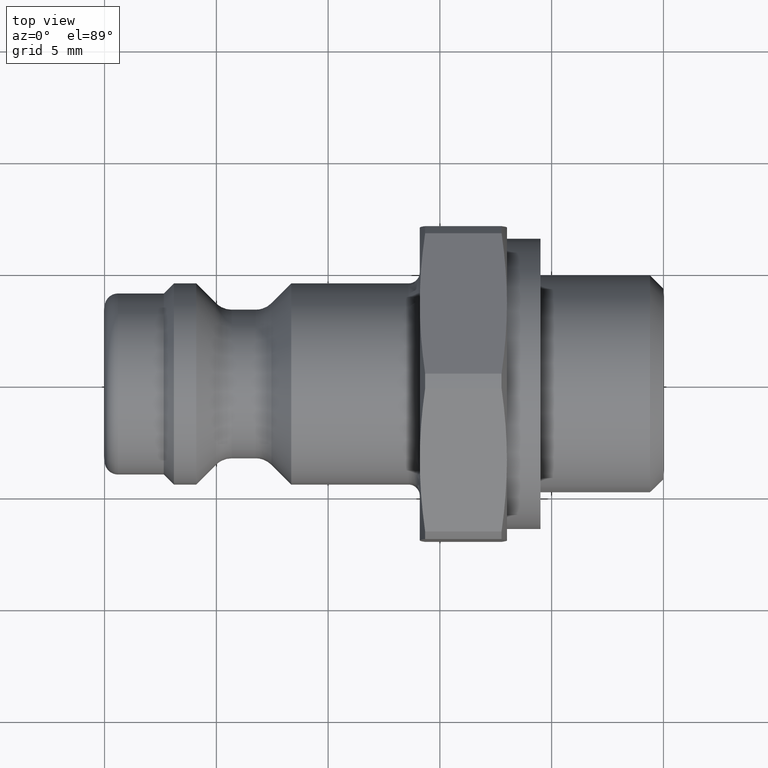
[diagram: clean part render]
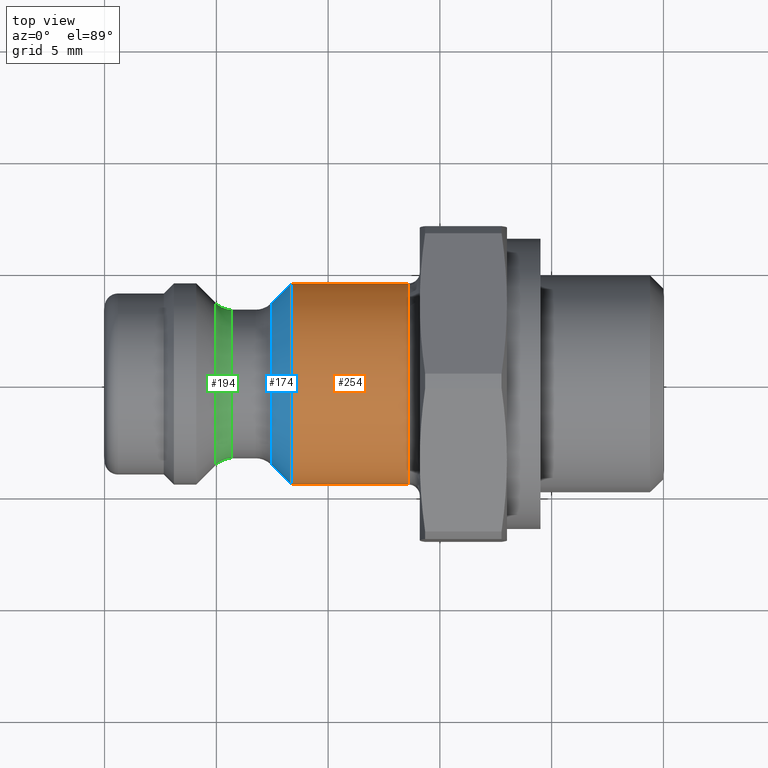
[diagram: same view with three faces highlighted in distinct colors, each labeled with its STEP entity id]
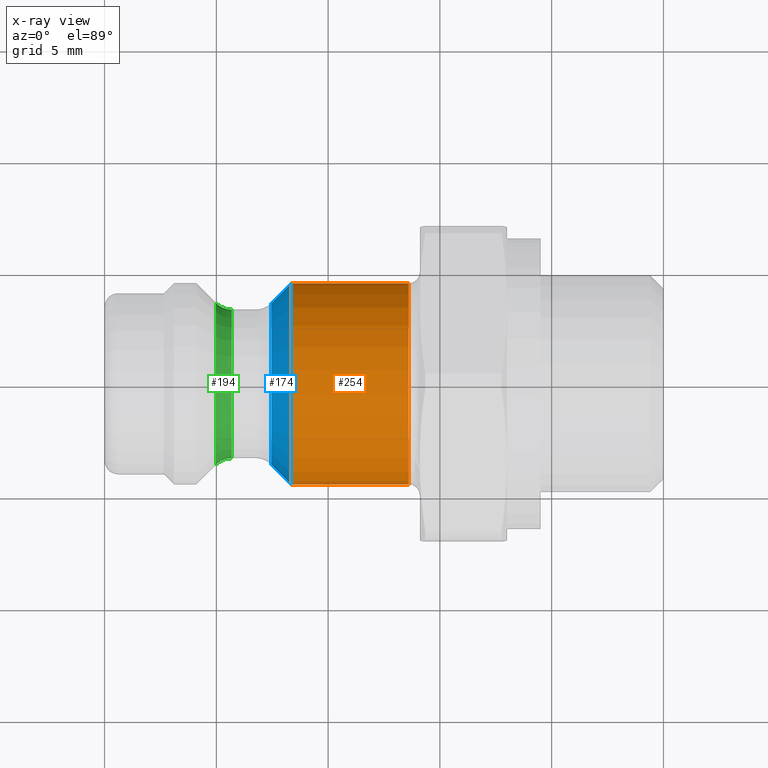
[diagram: x-ray of the same camera — body ghosted, the three highlighted faces saturated]
A machine part, top view with three faces highlighted in distinct colors.
The next image is the same camera in x-ray (body ghosted, the three faces saturated) — at least one of them is partly hidden behind the body in this view.
Their STEP definitions:

[orange] entity #254 — the highlighted cylindrical surface (bore or boss wall) has radius 4.5 mm, axis along (1, 0, 0).
#160=CARTESIAN_POINT('',(8.350000000000000,4.500000000000000,0.0));
#161=VERTEX_POINT('',#160);
#162=CARTESIAN_POINT('',(8.350000000000000,0.0,0.0));
#163=DIRECTION('',(1.0,0.0,0.0));
#164=DIRECTION('',(0.0,1.0,0.0));
#165=AXIS2_PLACEMENT_3D('',#162,#163,#164);
#166=CIRCLE('',#165,4.500000000000000);
#167=EDGE_CURVE('',#161,#161,#166,.T.);
#220=CARTESIAN_POINT('',(13.600000000000001,4.500000000000000,0.0));
#221=VERTEX_POINT('',#220);
#222=CARTESIAN_POINT('',(13.600000000000001,0.0,0.0));
#223=DIRECTION('',(1.0,0.0,0.0));
#224=DIRECTION('',(0.0,-1.0,0.0));
#225=AXIS2_PLACEMENT_3D('',#222,#223,#224);
#226=CIRCLE('',#225,4.500000000000000);
#227=EDGE_CURVE('',#221,#221,#226,.T.);
#243=CARTESIAN_POINT('',(11.225000000000001,0.0,0.0));
#244=DIRECTION('',(1.0,0.0,0.0));
#245=DIRECTION('',(0.0,1.0,0.0));
#246=AXIS2_PLACEMENT_3D('',#243,#244,#245);
#247=CYLINDRICAL_SURFACE('',#246,4.500000000000000);
#248=ORIENTED_EDGE('',*,*,#167,.T.);
#249=EDGE_LOOP('',(#248));
#250=FACE_OUTER_BOUND('',#249,.T.);
#251=ORIENTED_EDGE('',*,*,#227,.F.);
#252=EDGE_LOOP('',(#251));
#253=FACE_BOUND('',#252,.T.);
#254=ADVANCED_FACE('',(#250,#253),#247,.T.);

[blue] entity #174 — the highlighted conical surface has half-angle 45 deg.
#123=CARTESIAN_POINT('',(7.467893218813453,3.617893218813452,-8.861283E-016));
#124=VERTEX_POINT('',#123);
#125=CARTESIAN_POINT('',(7.467893218813453,0.0,-4.430641E-016));
#126=DIRECTION('',(-1.0,0.0,0.0));
#127=DIRECTION('',(0.0,-1.0,0.0));
#128=AXIS2_PLACEMENT_3D('',#125,#126,#127);
#129=CIRCLE('',#128,3.617893218813452);
#130=EDGE_CURVE('',#124,#124,#129,.T.);
#155=CARTESIAN_POINT('',(7.762500000000000,0.0,0.0));
#156=DIRECTION('',(1.0,0.0,0.0));
#157=DIRECTION('',(0.0,1.0,0.0));
#158=AXIS2_PLACEMENT_3D('',#155,#156,#157);
#159=CONICAL_SURFACE('',#158,3.912500000000000,45.000000000000014);
#160=CARTESIAN_POINT('',(8.350000000000000,4.500000000000000,0.0));
#161=VERTEX_POINT('',#160);
#162=CARTESIAN_POINT('',(8.350000000000000,0.0,0.0));
#163=DIRECTION('',(1.0,0.0,0.0));
#164=DIRECTION('',(0.0,1.0,0.0));
#165=AXIS2_PLACEMENT_3D('',#162,#163,#164);
#166=CIRCLE('',#165,4.500000000000000);
#167=EDGE_CURVE('',#161,#161,#166,.T.);
#168=ORIENTED_EDGE('',*,*,#167,.F.);
#169=EDGE_LOOP('',(#168));
#170=FACE_OUTER_BOUND('',#169,.T.);
#171=ORIENTED_EDGE('',*,*,#130,.F.);
#172=EDGE_LOOP('',(#171));
#173=FACE_BOUND('',#172,.T.);
#174=ADVANCED_FACE('',(#170,#173),#159,.T.);

[green] entity #194 — the highlighted toroidal blend (fillet) surface has major radius 4.325 mm and minor (blend) radius 1 mm.
#140=CARTESIAN_POINT('',(5.689213562373095,3.325000000000000,-8.143901E-016));
#141=VERTEX_POINT('',#140);
#142=CARTESIAN_POINT('',(5.689213562373095,0.0,0.0));
#143=DIRECTION('',(-1.0,0.0,0.0));
#144=DIRECTION('',(0.0,-1.0,0.0));
#145=AXIS2_PLACEMENT_3D('',#142,#143,#144);
#146=CIRCLE('',#145,3.325000000000000);
#147=EDGE_CURVE('',#141,#141,#146,.T.);
#175=CARTESIAN_POINT('',(5.689213562373095,0.0,0.0));
#176=DIRECTION('',(1.0,0.0,0.0));
#177=DIRECTION('',(0.0,0.0,-1.0));
#178=AXIS2_PLACEMENT_3D('',#175,#176,#177);
#179=TOROIDAL_SURFACE('',#178,4.325000000000000,1.0);
#180=CARTESIAN_POINT('',(4.982106781186547,3.617893218813452,-6.162976E-032));
#181=VERTEX_POINT('',#180);
#182=CARTESIAN_POINT('',(4.982106781186547,0.0,-4.430641E-016));
#183=DIRECTION('',(1.0,0.0,0.0));
#184=DIRECTION('',(0.0,-1.0,0.0));
#185=AXIS2_PLACEMENT_3D('',#182,#183,#184);
#186=CIRCLE('',#185,3.617893218813452);
#187=EDGE_CURVE('',#181,#181,#186,.T.);
#188=ORIENTED_EDGE('',*,*,#187,.T.);
#189=EDGE_LOOP('',(#188));
#190=FACE_OUTER_BOUND('',#189,.T.);
#191=ORIENTED_EDGE('',*,*,#147,.T.);
#192=EDGE_LOOP('',(#191));
#193=FACE_BOUND('',#192,.T.);
#194=ADVANCED_FACE('',(#190,#193),#179,.F.);